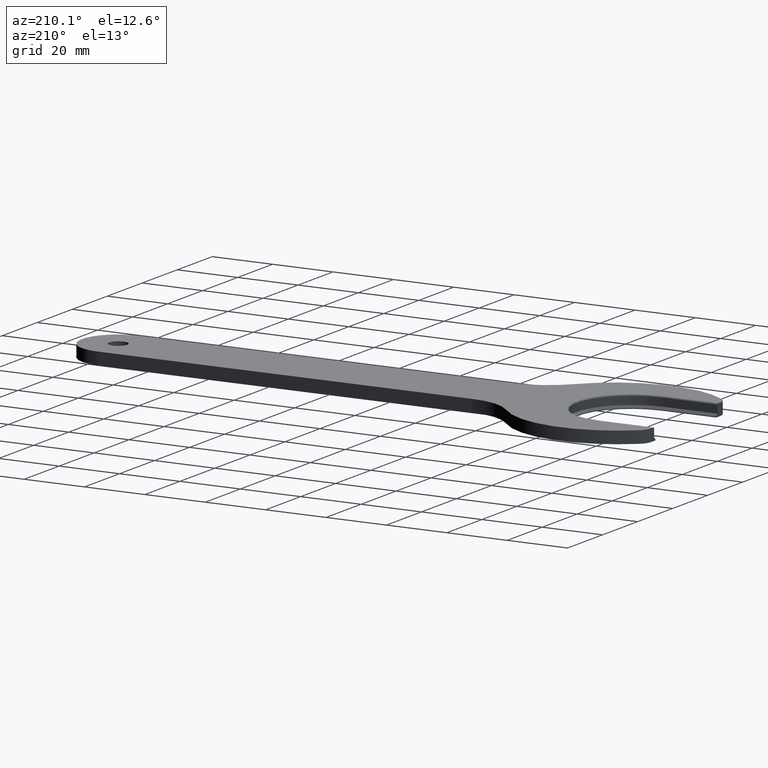
[diagram: clean part render]
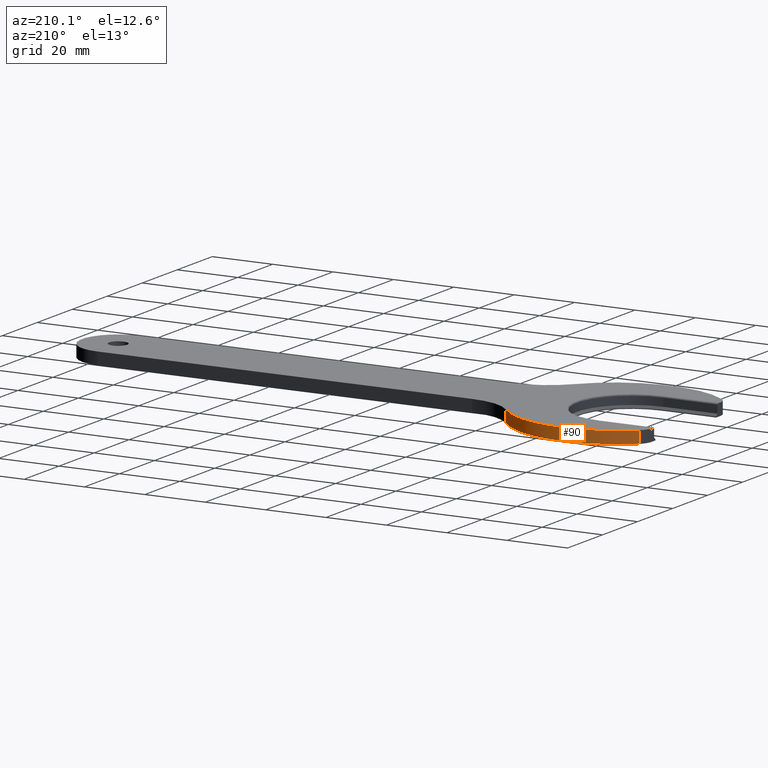
[diagram: same view with one face highlighted and labeled with its STEP entity id]
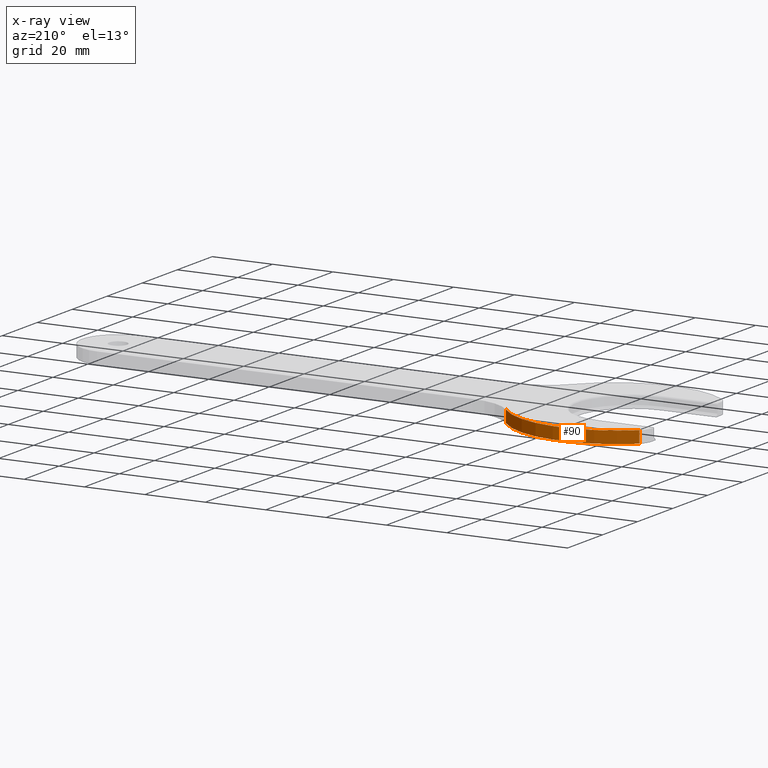
[diagram: x-ray of the same camera — body ghosted, the highlighted face saturated]
A machine part, auxiliary view. The second image highlights one B-rep face of the part: STEP entity #90.
The next image is the same camera in x-ray: the body ghosted, the highlighted face saturated — about 0% of this face is hidden behind the body in this view.
In plain terms, the highlighted cylindrical surface (partial cylindrical patch) has radius 32.5 mm, axis along (-0, -0, 1).
Its self-contained STEP definition (entity closure, byte-faithful):
#90 = ADVANCED_FACE( '', ( #181 ), #182, .T. );
#181 = FACE_OUTER_BOUND( '', #269, .T. );
#182 = CYLINDRICAL_SURFACE( '', #270, 32.5000000000000 );
#269 = EDGE_LOOP( '', ( #461, #462, #463, #464 ) );
#270 = AXIS2_PLACEMENT_3D( '', #465, #466, #467 );
#461 = ORIENTED_EDGE( '', *, *, #566, .F. );
#462 = ORIENTED_EDGE( '', *, *, #538, .T. );
#463 = ORIENTED_EDGE( '', *, *, #601, .T. );
#464 = ORIENTED_EDGE( '', *, *, #578, .T. );
#465 = CARTESIAN_POINT( '', ( 5.00000000000000, -1.00000000000000, 2.00000000000000 ) );
#466 = DIRECTION( '', ( -0.000000000000000, -0.000000000000000, 1.00000000000000 ) );
#467 = DIRECTION( '', ( -1.00000000000000, 0.000000000000000, 0.000000000000000 ) );
#538 = EDGE_CURVE( '', #640, #637, #641, .F. );
#566 = EDGE_CURVE( '', #640, #684, #685, .T. );
#578 = EDGE_CURVE( '', #703, #684, #704, .T. );
#601 = EDGE_CURVE( '', #637, #703, #732, .T. );
#637 = VERTEX_POINT( '', #779 );
#640 = VERTEX_POINT( '', #782 );
#641 = LINE( '', #783, #784 );
#684 = VERTEX_POINT( '', #843 );
#685 = CIRCLE( '', #844, 32.5000000000000 );
#703 = VERTEX_POINT( '', #866 );
#704 = LINE( '', #867, #868 );
#732 = CIRCLE( '', #905, 32.5000000000000 );
#779 = CARTESIAN_POINT( '', ( -16.2727272727273, 23.5707361383449, 2.00000000000000 ) );
#782 = CARTESIAN_POINT( '', ( -16.2727272727273, 23.5707361383449, -2.00000000000000 ) );
#783 = CARTESIAN_POINT( '', ( -16.2727272727273, 23.5707361383449, 2.00000000000000 ) );
#784 = VECTOR( '', #941, 1000.00000000000 );
#843 = CARTESIAN_POINT( '', ( 30.2769355220872, 19.4285714285714, -2.00000000000000 ) );
#844 = AXIS2_PLACEMENT_3D( '', #973, #974, #975 );
#866 = CARTESIAN_POINT( '', ( 30.2769355220872, 19.4285714285714, 2.00000000000000 ) );
#867 = CARTESIAN_POINT( '', ( 30.2769355220872, 19.4285714285714, 2.00000000000000 ) );
#868 = VECTOR( '', #995, 1000.00000000000 );
#905 = AXIS2_PLACEMENT_3D( '', #1017, #1018, #1019 );
#941 = DIRECTION( '', ( 0.000000000000000, 0.000000000000000, -1.00000000000000 ) );
#973 = CARTESIAN_POINT( '', ( 5.00000000000000, -1.00000000000000, -2.00000000000000 ) );
#974 = DIRECTION( '', ( 0.000000000000000, 0.000000000000000, -1.00000000000000 ) );
#975 = DIRECTION( '', ( 1.00000000000000, 0.000000000000000, 0.000000000000000 ) );
#995 = DIRECTION( '', ( 0.000000000000000, 0.000000000000000, -1.00000000000000 ) );
#1017 = CARTESIAN_POINT( '', ( 5.00000000000000, -1.00000000000000, 2.00000000000000 ) );
#1018 = DIRECTION( '', ( 0.000000000000000, 0.000000000000000, -1.00000000000000 ) );
#1019 = DIRECTION( '', ( 1.00000000000000, 0.000000000000000, 0.000000000000000 ) );